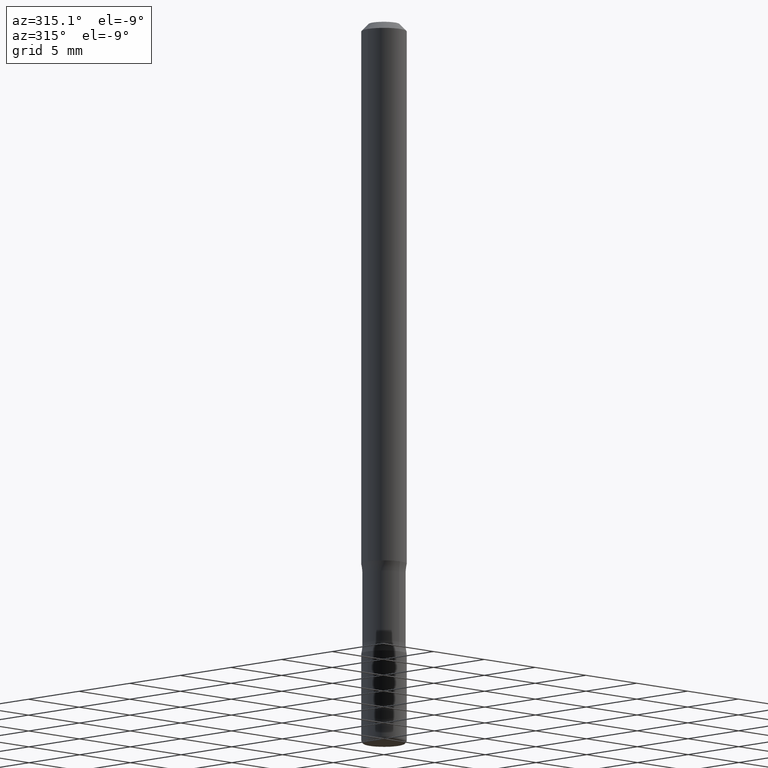
[diagram: clean part render]
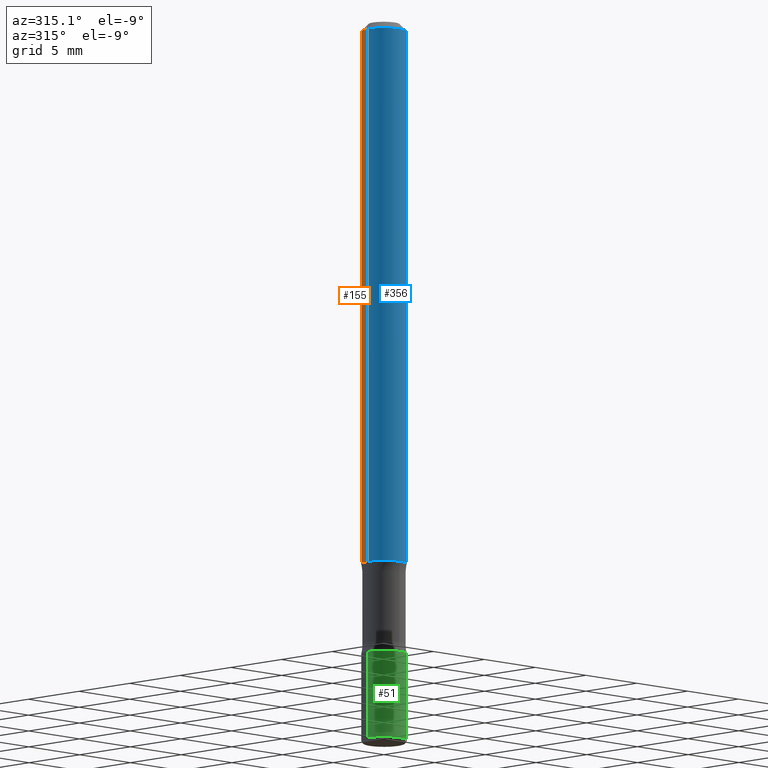
[diagram: same view with three faces highlighted in distinct colors, each labeled with its STEP entity id]
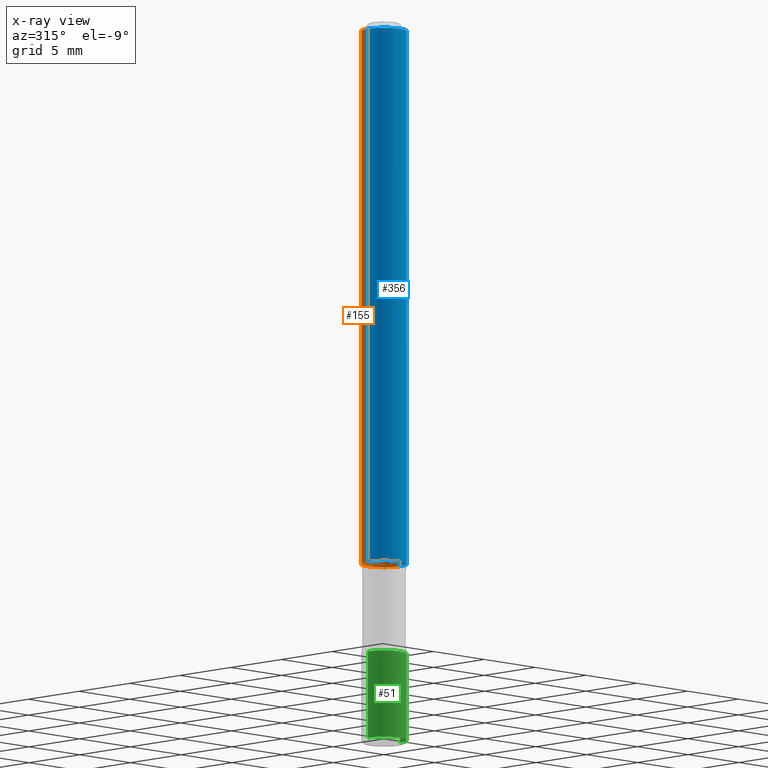
[diagram: x-ray of the same camera — body ghosted, the three highlighted faces saturated]
A machine part, auxiliary view with three faces highlighted in distinct colors.
The next image is the same camera in x-ray (body ghosted, the three faces saturated) — at least one of them is partly hidden behind the body in this view.
Their STEP definitions:

[orange] entity #155 — the highlighted cylindrical surface (edge-blend (fillet) strip) has radius 1.5875 mm, axis along (-0, 0, 1).
#55 = VECTOR ( 'NONE', #125, 39.37007874015748143 ) ;
#59 = EDGE_CURVE ( 'NONE', #470, #258, #424, .T. ) ;
#62 = CARTESIAN_POINT ( 'NONE',  ( 3.668203209277701532E-29, -5.237222008264713444E-15, -1.499999999999998668 ) ) ;
#83 = CYLINDRICAL_SURFACE ( 'NONE', #118, 0.06250000000000073552 ) ;
#87 = DIRECTION ( 'NONE',  ( 1.000000000000000000, -6.982962677686265922E-15, 4.876176775795935793E-29 ) ) ;
#118 = AXIS2_PLACEMENT_3D ( 'NONE', #493, #299, #87 ) ;
#122 = FACE_OUTER_BOUND ( 'NONE', #161, .T. ) ;
#125 = DIRECTION ( 'NONE',  ( -2.445468806185136877E-29, 3.491481338843145188E-15, 1.000000000000000000 ) ) ;
#140 = CARTESIAN_POINT ( 'NONE',  ( 4.890937612370306439E-31, -6.982962677686338448E-17, -0.02000000000000013572 ) ) ;
#155 = ADVANCED_FACE ( 'NONE', ( #122 ), #83, .T. ) ;
#161 = EDGE_LOOP ( 'NONE', ( #483, #227, #558, #379 ) ) ;
#178 = VERTEX_POINT ( 'NONE', #214 ) ;
#183 = VERTEX_POINT ( 'NONE', #544 ) ;
#214 = CARTESIAN_POINT ( 'NONE',  ( -0.06250000000000090206, -2.209436607670712344E-15, -1.499999999999998668 ) ) ;
#227 = ORIENTED_EDGE ( 'NONE', *, *, #279, .T. ) ;
#233 = CARTESIAN_POINT ( 'NONE',  ( 0.06250000000000073552, -4.364351673553967477E-16, 3.047610484872495604E-30 ) ) ;
#236 = DIRECTION ( 'NONE',  ( -2.445468806185136597E-29, 3.491481338843145583E-15, 1.000000000000000000 ) ) ;
#249 = AXIS2_PLACEMENT_3D ( 'NONE', #62, #426, #463 ) ;
#258 = VERTEX_POINT ( 'NONE', #316 ) ;
#269 = CIRCLE ( 'NONE', #455, 0.06250000000000056899 ) ;
#279 = EDGE_CURVE ( 'NONE', #178, #183, #526, .T. ) ;
#282 = CARTESIAN_POINT ( 'NONE',  ( -0.06250000000000073552, 4.440892098500678424E-16, -3.074334431409351847E-30 ) ) ;
#299 = DIRECTION ( 'NONE',  ( -2.445468806185136597E-29, 3.491481338843145583E-15, 1.000000000000000000 ) ) ;
#312 = CARTESIAN_POINT ( 'NONE',  ( 0.06250000000000090206, -5.673657175620112213E-15, -1.499999999999998668 ) ) ;
#316 = CARTESIAN_POINT ( 'NONE',  ( 0.06250000000000056899, -4.986107516375879651E-16, -0.02000000000000013572 ) ) ;
#349 = DIRECTION ( 'NONE',  ( 1.000000000000000000, -6.982962677686265922E-15, 0.000000000000000000 ) ) ;
#379 = ORIENTED_EDGE ( 'NONE', *, *, #59, .F. ) ;
#388 = DIRECTION ( 'NONE',  ( -2.445468806185136877E-29, 3.491481338843145188E-15, 1.000000000000000000 ) ) ;
#424 = LINE ( 'NONE', #233, #552 ) ;
#426 = DIRECTION ( 'NONE',  ( -2.445468806185136597E-29, 3.491481338843145583E-15, 1.000000000000000000 ) ) ;
#445 = EDGE_CURVE ( 'NONE', #258, #183, #269, .T. ) ;
#455 = AXIS2_PLACEMENT_3D ( 'NONE', #140, #236, #349 ) ;
#463 = DIRECTION ( 'NONE',  ( 1.000000000000000000, -6.982962677686270655E-15, 0.000000000000000000 ) ) ;
#465 = EDGE_CURVE ( 'NONE', #470, #178, #467, .T. ) ;
#467 = CIRCLE ( 'NONE', #249, 0.06250000000000090206 ) ;
#470 = VERTEX_POINT ( 'NONE', #312 ) ;
#483 = ORIENTED_EDGE ( 'NONE', *, *, #465, .T. ) ;
#493 = CARTESIAN_POINT ( 'NONE',  ( 0.000000000000000000, 0.000000000000000000, 0.000000000000000000 ) ) ;
#526 = LINE ( 'NONE', #282, #55 ) ;
#544 = CARTESIAN_POINT ( 'NONE',  ( -0.06250000000000056899, 3.666055405785322169E-16, -0.02000000000000013572 ) ) ;
#552 = VECTOR ( 'NONE', #388, 39.37007874015748143 ) ;
#558 = ORIENTED_EDGE ( 'NONE', *, *, #445, .F. ) ;

[blue] entity #356 — the highlighted cylindrical surface (edge-blend (fillet) strip) has radius 1.5875 mm, axis along (-0, 0, 1).
#44 = AXIS2_PLACEMENT_3D ( 'NONE', #347, #150, #219 ) ;
#47 = EDGE_CURVE ( 'NONE', #183, #258, #248, .T. ) ;
#55 = VECTOR ( 'NONE', #125, 39.37007874015748143 ) ;
#59 = EDGE_CURVE ( 'NONE', #470, #258, #424, .T. ) ;
#102 = ORIENTED_EDGE ( 'NONE', *, *, #59, .T. ) ;
#121 = AXIS2_PLACEMENT_3D ( 'NONE', #346, #193, #423 ) ;
#125 = DIRECTION ( 'NONE',  ( -2.445468806185136877E-29, 3.491481338843145188E-15, 1.000000000000000000 ) ) ;
#137 = CIRCLE ( 'NONE', #121, 0.06250000000000090206 ) ;
#150 = DIRECTION ( 'NONE',  ( -2.445468806185136597E-29, 3.491481338843145583E-15, 1.000000000000000000 ) ) ;
#178 = VERTEX_POINT ( 'NONE', #214 ) ;
#183 = VERTEX_POINT ( 'NONE', #544 ) ;
#193 = DIRECTION ( 'NONE',  ( -2.445468806185136597E-29, 3.491481338843145583E-15, 1.000000000000000000 ) ) ;
#196 = EDGE_LOOP ( 'NONE', ( #295, #314, #102, #438 ) ) ;
#214 = CARTESIAN_POINT ( 'NONE',  ( -0.06250000000000090206, -2.209436607670712344E-15, -1.499999999999998668 ) ) ;
#219 = DIRECTION ( 'NONE',  ( 1.000000000000000000, -6.982962677686265922E-15, 4.876176775795935793E-29 ) ) ;
#233 = CARTESIAN_POINT ( 'NONE',  ( 0.06250000000000073552, -4.364351673553967477E-16, 3.047610484872495604E-30 ) ) ;
#237 = AXIS2_PLACEMENT_3D ( 'NONE', #268, #507, #266 ) ;
#248 = CIRCLE ( 'NONE', #237, 0.06250000000000056899 ) ;
#258 = VERTEX_POINT ( 'NONE', #316 ) ;
#266 = DIRECTION ( 'NONE',  ( 1.000000000000000000, -6.982962677686265922E-15, 0.000000000000000000 ) ) ;
#268 = CARTESIAN_POINT ( 'NONE',  ( 4.890937612370306439E-31, -6.982962677686338448E-17, -0.02000000000000013572 ) ) ;
#279 = EDGE_CURVE ( 'NONE', #178, #183, #526, .T. ) ;
#282 = CARTESIAN_POINT ( 'NONE',  ( -0.06250000000000073552, 4.440892098500678424E-16, -3.074334431409351847E-30 ) ) ;
#295 = ORIENTED_EDGE ( 'NONE', *, *, #279, .F. ) ;
#312 = CARTESIAN_POINT ( 'NONE',  ( 0.06250000000000090206, -5.673657175620112213E-15, -1.499999999999998668 ) ) ;
#314 = ORIENTED_EDGE ( 'NONE', *, *, #431, .T. ) ;
#316 = CARTESIAN_POINT ( 'NONE',  ( 0.06250000000000056899, -4.986107516375879651E-16, -0.02000000000000013572 ) ) ;
#346 = CARTESIAN_POINT ( 'NONE',  ( 3.668203209277701532E-29, -5.237222008264713444E-15, -1.499999999999998668 ) ) ;
#347 = CARTESIAN_POINT ( 'NONE',  ( 0.000000000000000000, 0.000000000000000000, 0.000000000000000000 ) ) ;
#356 = ADVANCED_FACE ( 'NONE', ( #480 ), #380, .T. ) ;
#380 = CYLINDRICAL_SURFACE ( 'NONE', #44, 0.06250000000000073552 ) ;
#388 = DIRECTION ( 'NONE',  ( -2.445468806185136877E-29, 3.491481338843145188E-15, 1.000000000000000000 ) ) ;
#423 = DIRECTION ( 'NONE',  ( 1.000000000000000000, -6.982962677686270655E-15, 0.000000000000000000 ) ) ;
#424 = LINE ( 'NONE', #233, #552 ) ;
#431 = EDGE_CURVE ( 'NONE', #178, #470, #137, .T. ) ;
#438 = ORIENTED_EDGE ( 'NONE', *, *, #47, .F. ) ;
#470 = VERTEX_POINT ( 'NONE', #312 ) ;
#480 = FACE_OUTER_BOUND ( 'NONE', #196, .T. ) ;
#507 = DIRECTION ( 'NONE',  ( -2.445468806185136597E-29, 3.491481338843145583E-15, 1.000000000000000000 ) ) ;
#526 = LINE ( 'NONE', #282, #55 ) ;
#544 = CARTESIAN_POINT ( 'NONE',  ( -0.06250000000000056899, 3.666055405785322169E-16, -0.02000000000000013572 ) ) ;
#552 = VECTOR ( 'NONE', #388, 39.37007874015748143 ) ;

[green] entity #51 — the highlighted cylindrical surface (edge-blend (fillet) strip) has radius 1.5875 mm, axis along (-0, 0, 1).
#7 = DIRECTION ( 'NONE',  ( 1.000000000000000000, -6.982962677686271444E-15, 0.000000000000000000 ) ) ;
#33 = EDGE_CURVE ( 'NONE', #145, #418, #373, .T. ) ;
#40 = CARTESIAN_POINT ( 'NONE',  ( -0.06250000000000062450, -6.084980893786609222E-15, -1.749999999999999112 ) ) ;
#41 = CARTESIAN_POINT ( 'NONE',  ( 4.279570410823987363E-29, -6.110092342975501516E-15, -1.749999999999999112 ) ) ;
#48 = LINE ( 'NONE', #560, #492 ) ;
#51 = ADVANCED_FACE ( 'NONE', ( #429 ), #151, .T. ) ;
#54 = DIRECTION ( 'NONE',  ( -2.445468806185136597E-29, 3.491481338843145583E-15, 1.000000000000000000 ) ) ;
#66 = CARTESIAN_POINT ( 'NONE',  ( 0.000000000000000000, 0.000000000000000000, 0.000000000000000000 ) ) ;
#73 = EDGE_CURVE ( 'NONE', #419, #145, #146, .T. ) ;
#98 = DIRECTION ( 'NONE',  ( 1.000000000000000000, -6.982962677686266711E-15, 4.876176775795936353E-29 ) ) ;
#99 = EDGE_CURVE ( 'NONE', #277, #418, #48, .T. ) ;
#145 = VERTEX_POINT ( 'NONE', #40 ) ;
#146 = LINE ( 'NONE', #256, #220 ) ;
#151 = CYLINDRICAL_SURFACE ( 'NONE', #198, 0.06250000000000076328 ) ;
#181 = AXIS2_PLACEMENT_3D ( 'NONE', #259, #515, #334 ) ;
#198 = AXIS2_PLACEMENT_3D ( 'NONE', #66, #54, #98 ) ;
#210 = EDGE_CURVE ( 'NONE', #419, #277, #520, .T. ) ;
#220 = VECTOR ( 'NONE', #458, 39.37007874015748143 ) ;
#234 = ORIENTED_EDGE ( 'NONE', *, *, #33, .F. ) ;
#256 = CARTESIAN_POINT ( 'NONE',  ( -0.06250000000000076328, 4.440892098500680396E-16, -3.074334431409353598E-30 ) ) ;
#259 = CARTESIAN_POINT ( 'NONE',  ( 4.866482924308417164E-29, -6.948047864297853205E-15, -1.989999999999998215 ) ) ;
#270 = ORIENTED_EDGE ( 'NONE', *, *, #210, .T. ) ;
#277 = VERTEX_POINT ( 'NONE', #411 ) ;
#294 = EDGE_LOOP ( 'NONE', ( #385, #270, #435, #234 ) ) ;
#334 = DIRECTION ( 'NONE',  ( 1.000000000000000000, -6.982962677686270655E-15, 0.000000000000000000 ) ) ;
#373 = CIRCLE ( 'NONE', #453, 0.06250000000000062450 ) ;
#385 = ORIENTED_EDGE ( 'NONE', *, *, #73, .F. ) ;
#393 = DIRECTION ( 'NONE',  ( -2.445468806185136597E-29, 3.491481338843145583E-15, 1.000000000000000000 ) ) ;
#411 = CARTESIAN_POINT ( 'NONE',  ( 0.06250000000000111022, -7.384483031653253552E-15, -1.989999999999998215 ) ) ;
#418 = VERTEX_POINT ( 'NONE', #456 ) ;
#419 = VERTEX_POINT ( 'NONE', #525 ) ;
#429 = FACE_OUTER_BOUND ( 'NONE', #294, .T. ) ;
#435 = ORIENTED_EDGE ( 'NONE', *, *, #99, .T. ) ;
#453 = AXIS2_PLACEMENT_3D ( 'NONE', #41, #393, #7 ) ;
#456 = CARTESIAN_POINT ( 'NONE',  ( 0.06250000000000062450, -6.546527510330897918E-15, -1.749999999999999112 ) ) ;
#458 = DIRECTION ( 'NONE',  ( -2.445468806185136877E-29, 3.491481338843145188E-15, 1.000000000000000000 ) ) ;
#492 = VECTOR ( 'NONE', #518, 39.37007874015748143 ) ;
#515 = DIRECTION ( 'NONE',  ( -2.445468806185136597E-29, 3.491481338843145583E-15, 1.000000000000000000 ) ) ;
#518 = DIRECTION ( 'NONE',  ( -2.445468806185136877E-29, 3.491481338843145188E-15, 1.000000000000000000 ) ) ;
#520 = CIRCLE ( 'NONE', #181, 0.06250000000000090206 ) ;
#525 = CARTESIAN_POINT ( 'NONE',  ( -0.06250000000000111022, -6.503958654447783489E-15, -1.989999999999998215 ) ) ;
#560 = CARTESIAN_POINT ( 'NONE',  ( 0.06250000000000076328, -4.364351673553969942E-16, 3.047610484872497355E-30 ) ) ;